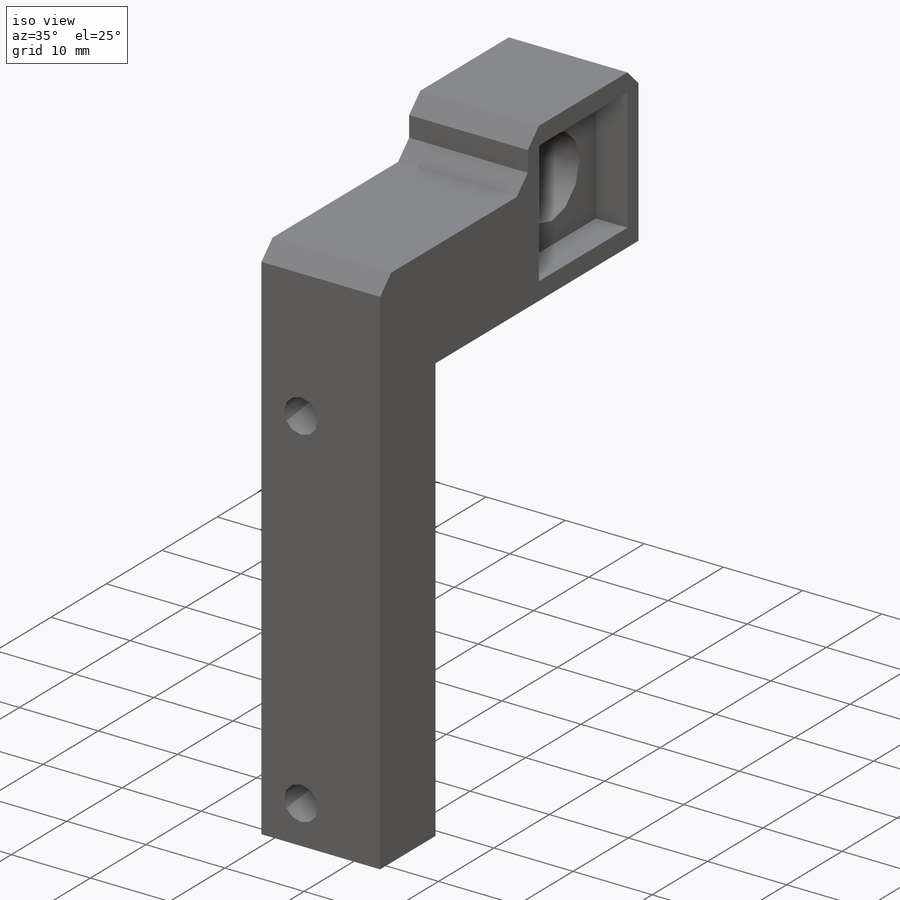
[diagram: iso view]
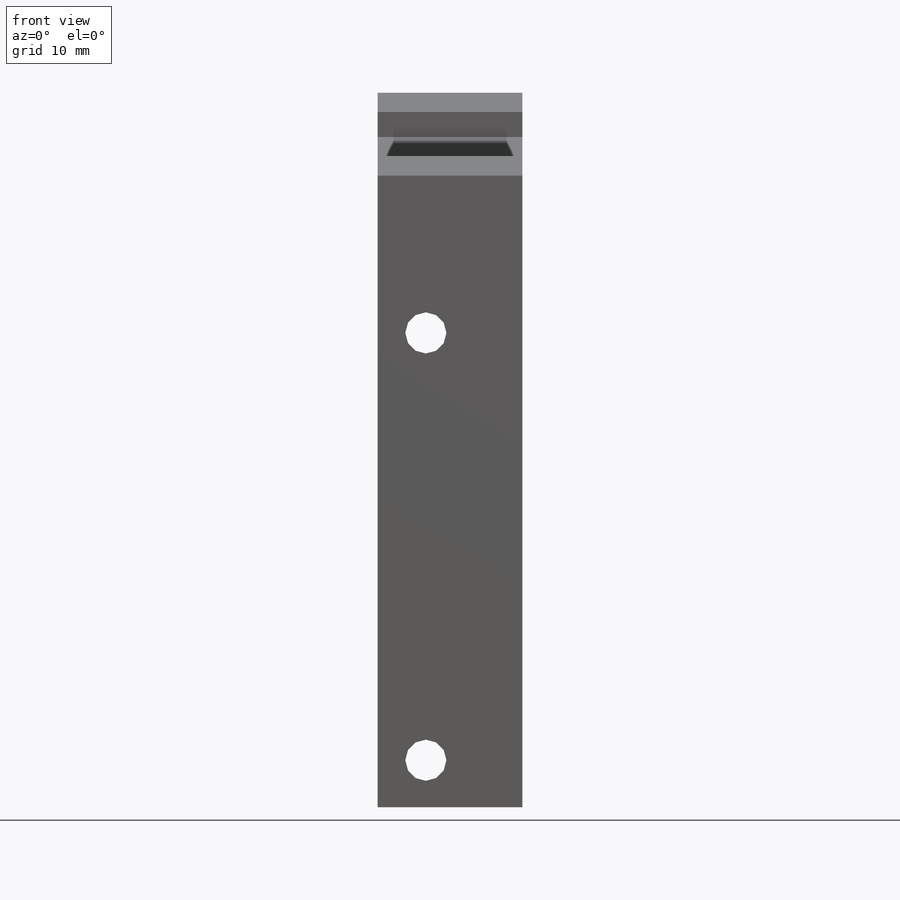
[diagram: front view]
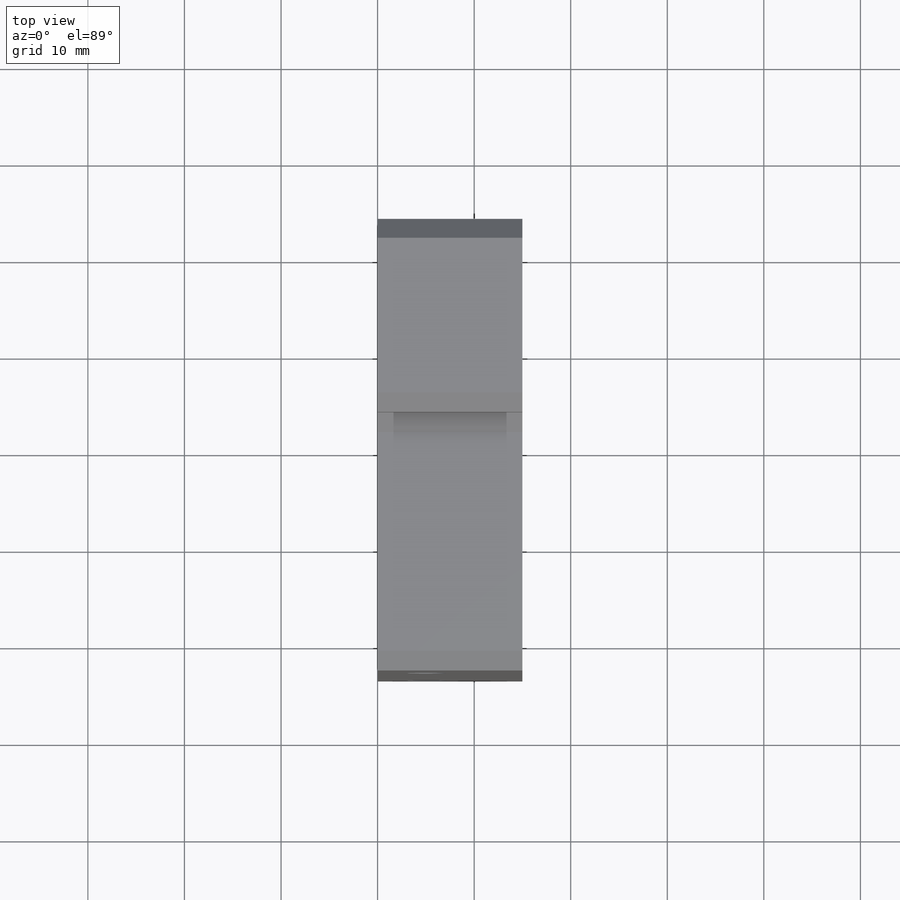
[diagram: top view]
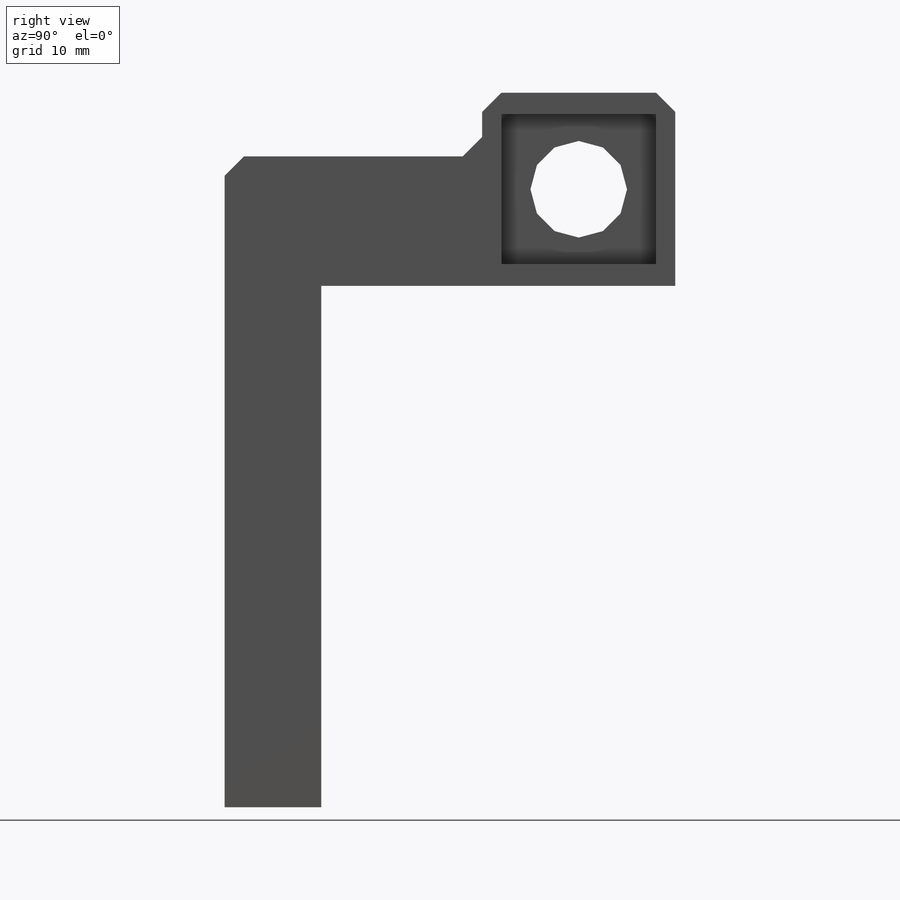
[diagram: right view]
SOLIDWORKS PART (.sldprt)
format: sldprt  version: not decoded by parser v0  size: 244,224 bytes
history: native  units: mm
features: sketch x5, extrude x3, cut_extrude x2, chamfer x2, material x1 (+13 scaffold rows collapsed)
feature tree (26):
  scaffold x13  (default folders/planes/origin — collapsed)
  material  "Material <not specified>"
  sketch  "Sketch1"  dims[D1=15.0mm D2=8.0mm]
  extrude  "Boss-Extrude1"  [1 undecoded]
  sketch  "Sketch2"  dims[c1.D3=10.0mm c1.D1=20.0mm c1.D2=20.0mm c2.D3=~54.715034mm]
  extrude  "Boss-Extrude2"  Depth=15mm
  sketch  "Sketch5"
  extrude  "Boss-Extrude3"  [1 undecoded]
  sketch  "Sketch3"  dims[D1=15.5mm D2=16.0mm]
  cut_extrude  "Cut-Extrude2"  Depth=4mm
  chamfer  "Chamfer1"  Distance=2mm Angle=45deg
  sketch  "Sketch4"  dims[D1=4.0mm D2=3.0mm]
  cut_extrude  "Cut-Extrude3"  Depth=10mm
  chamfer  "Chamfer2"  Distance=2mm Angle=45deg
decode coverage: 9 of 12 modeling features carry decoded parameters
note: ~ marks probable driven/reference dimensions
note: 2 parameter values undecoded
note: suppression state not decoded; provenance and decode notes live in map.json
